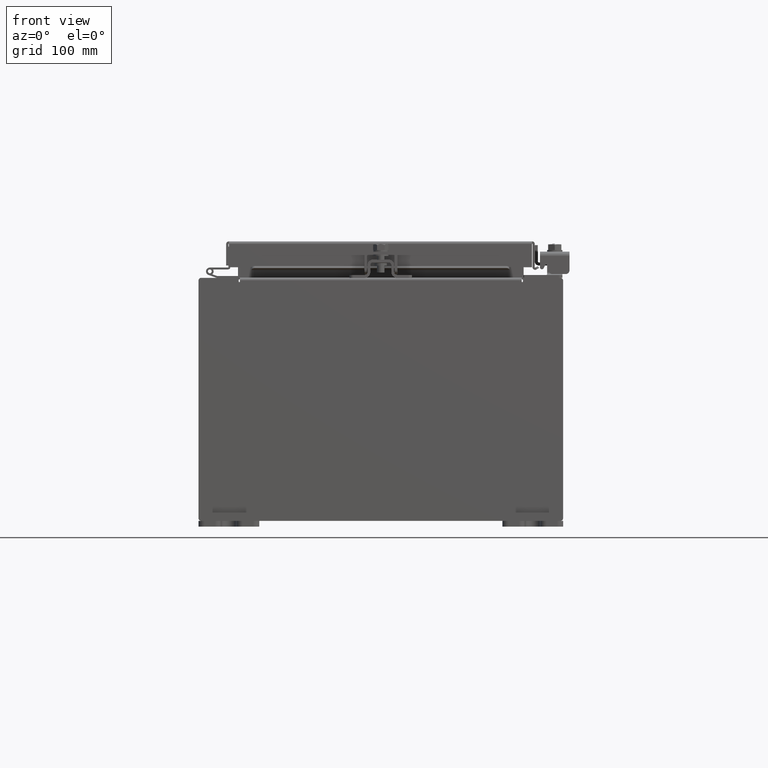
[diagram: clean part render]
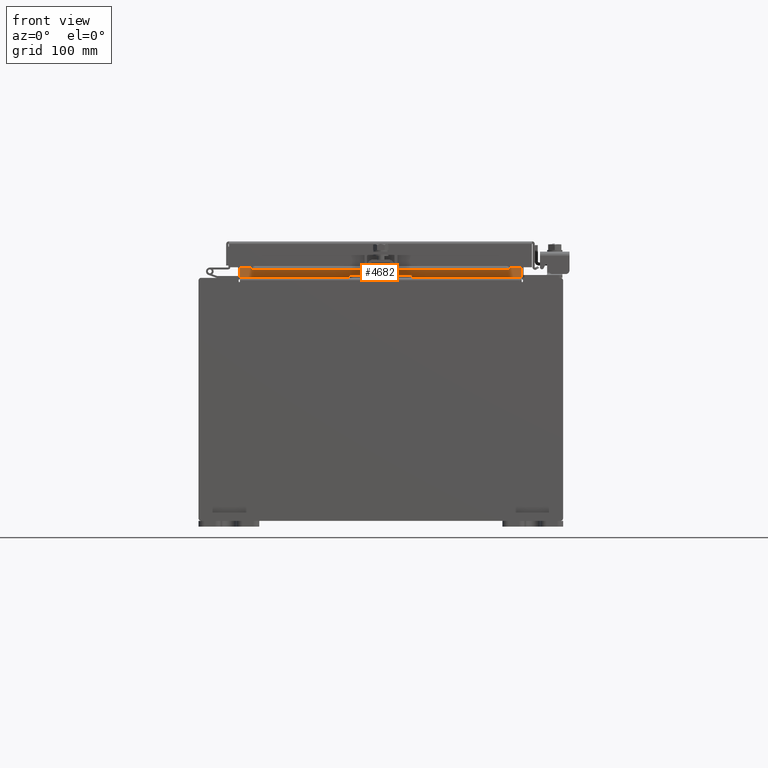
[diagram: same view with one face highlighted and labeled with its STEP entity id]
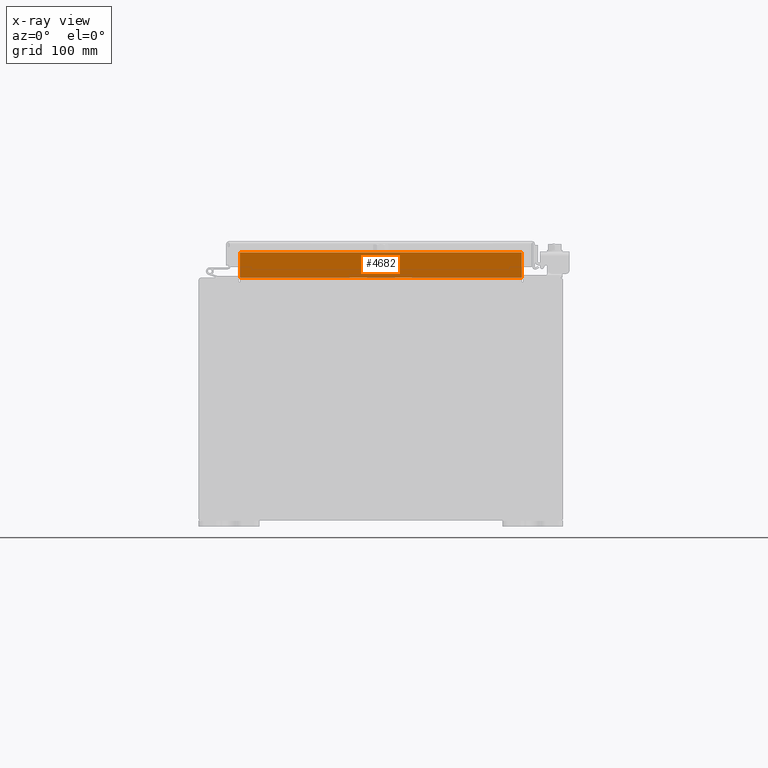
[diagram: x-ray of the same camera — body ghosted, the highlighted face saturated]
A machine part, front view. The second image highlights one B-rep face of the part: STEP entity #4682.
The next image is the same camera in x-ray: the body ghosted, the highlighted face saturated — about 0% of this face is hidden behind the body in this view.
In plain terms, the highlighted planar face has unit normal (0, -1, 0).
Its self-contained STEP definition (entity closure, byte-faithful):
#1148 = CARTESIAN_POINT ( 'NONE',  ( -4.637199999999998200, -1.300299999999999800, 4.013000000000003500 ) ) ;
#1269 = CARTESIAN_POINT ( 'NONE',  ( -4.637199999999998200, -1.300299999999999800, 4.013000000000003500 ) ) ;
#1405 = ORIENTED_EDGE ( 'NONE', *, *, #23483, .F. ) ;
#2000 = LINE ( 'NONE', #15573, #16794 ) ;
#3112 = AXIS2_PLACEMENT_3D ( 'NONE', #19509, #15549, #3507 ) ;
#3507 = DIRECTION ( 'NONE',  ( 0.0000000000000000000, -0.0000000000000000000, 1.000000000000000000 ) ) ;
#4115 = VERTEX_POINT ( 'NONE', #16335 ) ;
#4472 = VECTOR ( 'NONE', #9219, 39.37007874015748100 ) ;
#4682 = ADVANCED_FACE ( 'NONE', ( #9380 ), #13549, .T. ) ;
#5621 = DIRECTION ( 'NONE',  ( -1.000000000000000000, -0.0000000000000000000, -0.0000000000000000000 ) ) ;
#7401 = ORIENTED_EDGE ( 'NONE', *, *, #15724, .F. ) ;
#8018 = ORIENTED_EDGE ( 'NONE', *, *, #12618, .F. ) ;
#8074 = EDGE_LOOP ( 'NONE', ( #8018, #7401, #1405, #24180 ) ) ;
#8862 = VECTOR ( 'NONE', #5621, 39.37007874015748100 ) ;
#9219 = DIRECTION ( 'NONE',  ( -0.0000000000000000000, -0.0000000000000000000, -1.000000000000000000 ) ) ;
#9380 = FACE_OUTER_BOUND ( 'NONE', #8074, .T. ) ;
#10531 = VERTEX_POINT ( 'NONE', #13457 ) ;
#11248 = VECTOR ( 'NONE', #13336, 39.37007874015748100 ) ;
#12618 = EDGE_CURVE ( 'NONE', #4115, #22097, #25873, .T. ) ;
#13336 = DIRECTION ( 'NONE',  ( 1.000000000000000000, 0.0000000000000000000, -5.891158444027135300E-017 ) ) ;
#13457 = CARTESIAN_POINT ( 'NONE',  ( 4.637200000000002700, -1.300299999999999800, 4.013000000000003500 ) ) ;
#13549 = PLANE ( 'NONE',  #3112 ) ;
#15549 = DIRECTION ( 'NONE',  ( 0.0000000000000000000, 1.000000000000000000, 0.0000000000000000000 ) ) ;
#15573 = CARTESIAN_POINT ( 'NONE',  ( 4.637200000000002700, -1.300299999999999800, 4.925300000000004500 ) ) ;
#15724 = EDGE_CURVE ( 'NONE', #24106, #4115, #24259, .T. ) ;
#16335 = CARTESIAN_POINT ( 'NONE',  ( -4.637199999999998200, -1.300299999999999800, 4.837600000000003700 ) ) ;
#16794 = VECTOR ( 'NONE', #25520, 39.37007874015748100 ) ;
#17233 = CARTESIAN_POINT ( 'NONE',  ( -4.637199999999998200, -1.300299999999999800, 4.000000000000003600 ) ) ;
#17674 = CARTESIAN_POINT ( 'NONE',  ( 4.637200000000002700, -1.300299999999999800, 4.837600000000003700 ) ) ;
#18610 = EDGE_CURVE ( 'NONE', #22097, #10531, #21945, .T. ) ;
#19509 = CARTESIAN_POINT ( 'NONE',  ( 0.0000000000000000000, -1.300299999999999800, 0.0000000000000000000 ) ) ;
#21517 = CARTESIAN_POINT ( 'NONE',  ( 4.637200000000002700, -1.300299999999999800, 4.837600000000003700 ) ) ;
#21945 = LINE ( 'NONE', #1269, #11248 ) ;
#22097 = VERTEX_POINT ( 'NONE', #1148 ) ;
#23483 = EDGE_CURVE ( 'NONE', #10531, #24106, #2000, .T. ) ;
#24106 = VERTEX_POINT ( 'NONE', #21517 ) ;
#24180 = ORIENTED_EDGE ( 'NONE', *, *, #18610, .F. ) ;
#24259 = LINE ( 'NONE', #17674, #8862 ) ;
#25520 = DIRECTION ( 'NONE',  ( -0.0000000000000000000, -0.0000000000000000000, 1.000000000000000000 ) ) ;
#25873 = LINE ( 'NONE', #17233, #4472 ) ;